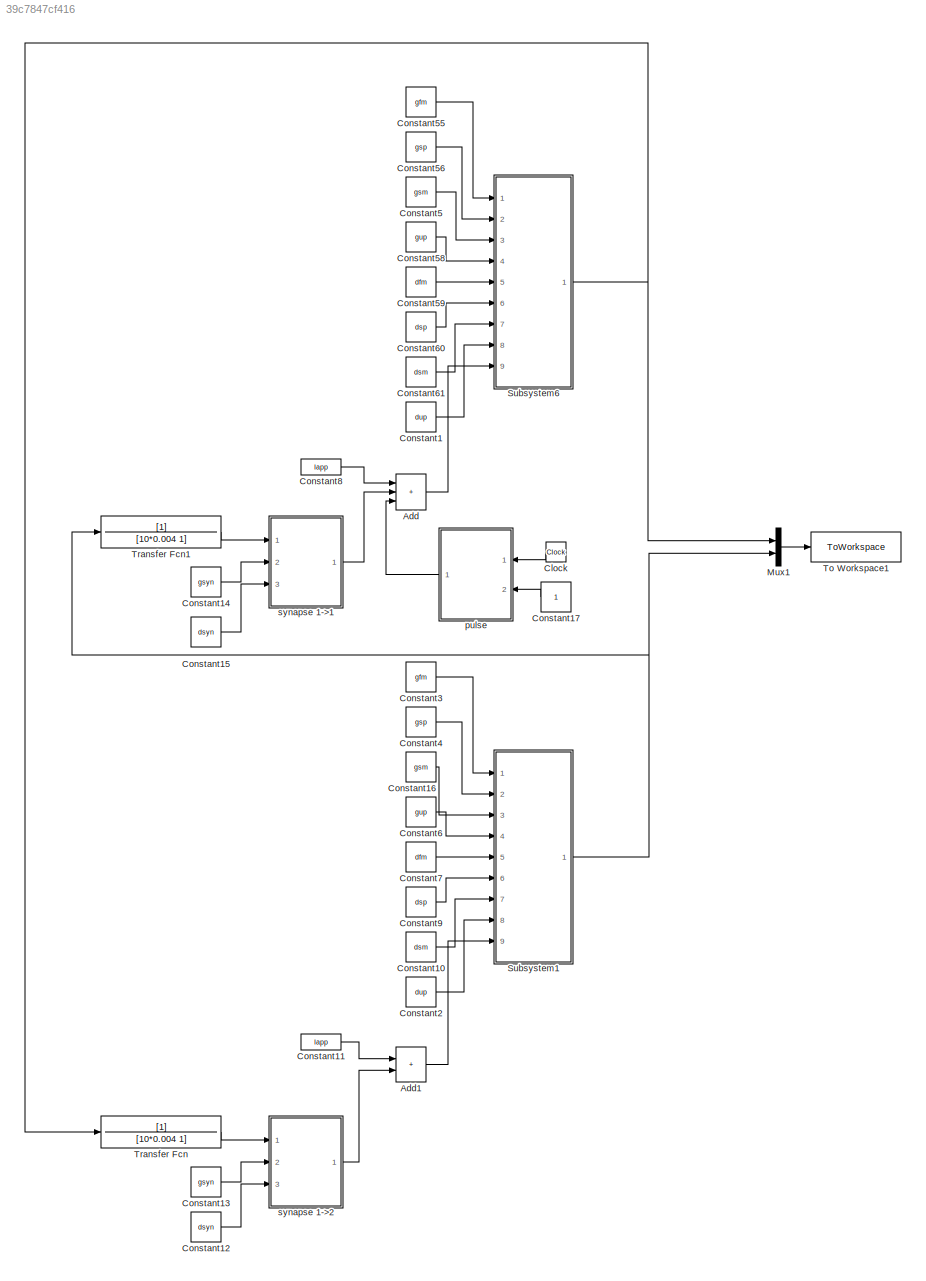
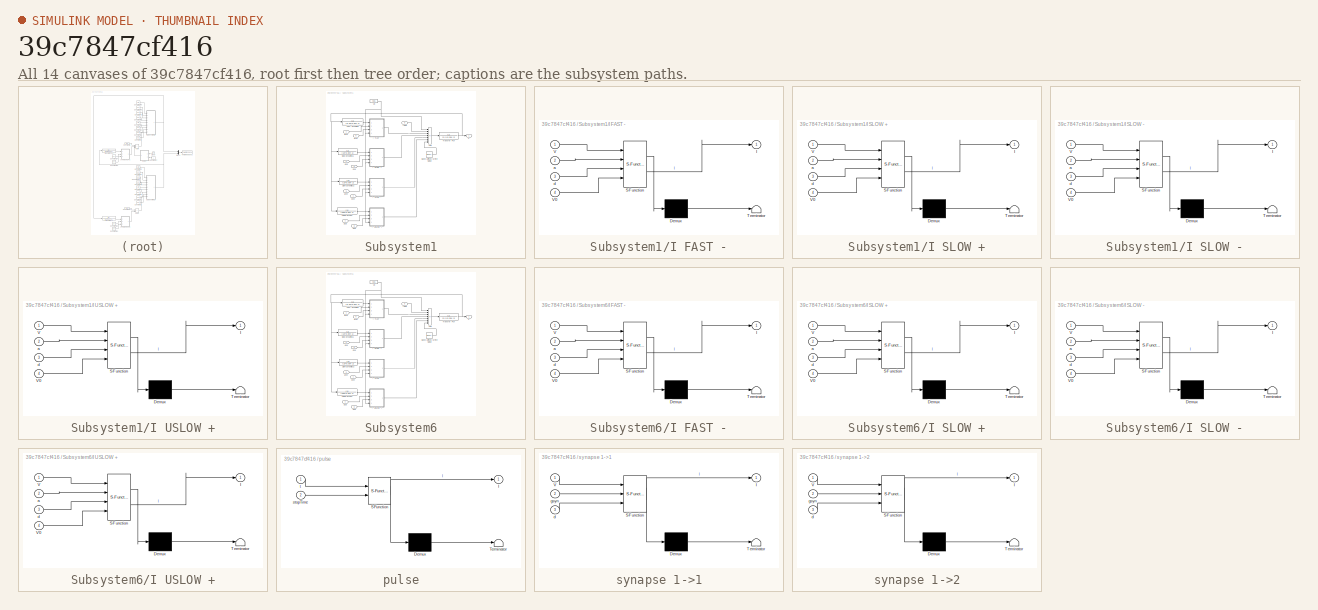
[diagram: thumbnail index - all 14 canvases of the model, root first then tree order]
MODEL slx_39c7847cf416
KIND model
CONFIG AbsTol = auto
CONFIG EnableMultiTasking = off
CONFIG FixedStep = auto
CONFIG MaxStep = auto
CONFIG MinStep = auto
CONFIG RelTol = 1e-3
CONFIG SampleTimeConstraint = Unconstrained
CONFIG SolverName = VariableStepAuto
CONFIG StartTime = 0.0
CONFIG StopTime = 10.0
BLOCK [Sum] Add
  IconShape = rectangular
  Inputs = +++
  Ports = [3, 1]
BLOCK [Sum] Add1
  IconShape = rectangular
  Ports = [2, 1]
BLOCK [Clock] Clock
  NameLocation = top
BLOCK [Constant] Constant1
  Value = dup
BLOCK [Constant] Constant10
  Value = dsm
BLOCK [Constant] Constant11
  Value = Iapp
BLOCK [Constant] Constant12
  Value = dsyn
BLOCK [Constant] Constant13
  Value = gsyn
BLOCK [Constant] Constant14
  Value = gsyn
BLOCK [Constant] Constant15
  Value = dsyn
BLOCK [Constant] Constant16
  Value = gsm
BLOCK [Constant] Constant17
  NameLocation = top
BLOCK [Constant] Constant2
  Value = dup
BLOCK [Constant] Constant3
  Value = gfm
BLOCK [Constant] Constant4
  Value = gsp
BLOCK [Constant] Constant5
  Value = gsm
BLOCK [Constant] Constant55
  Value = gfm
BLOCK [Constant] Constant56
  Value = gsp
BLOCK [Constant] Constant58
  Value = gup
BLOCK [Constant] Constant59
  Value = dfm
BLOCK [Constant] Constant6
  Value = gup
BLOCK [Constant] Constant60
  Value = dsp
BLOCK [Constant] Constant61
  Value = dsm
BLOCK [Constant] Constant7
  Value = dfm
BLOCK [Constant] Constant8
  Value = Iapp
BLOCK [Constant] Constant9
  Value = dsp
BLOCK [Mux] Mux1
  DisplayOption = bar
  Inputs = 2
  Ports = [2, 1]
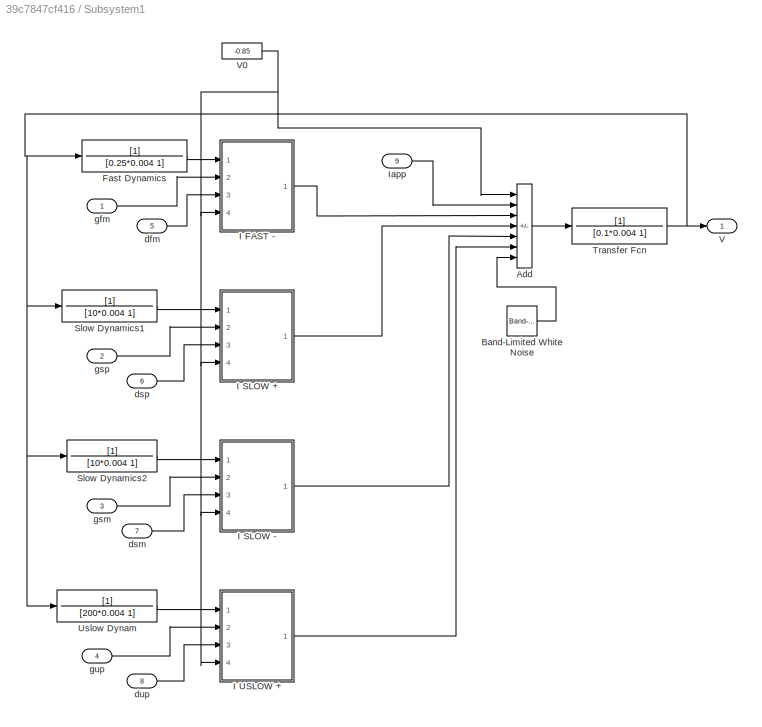
BLOCK [SubSystem] Subsystem1
  Ports = [9, 1]
  RequestExecContextInheritance = off
BLOCK [Sum] Subsystem1/Add
  IconShape = rectangular
  Inputs = ++----+
  Ports = [7, 1]
BLOCK [Reference] Subsystem1/Band-Limited White Noise  REF=simulink/Sources/Band-Limited
White Noise
  Ports = [0, 1]
  SourceBlock = simulink/Sources/Band-Limited\nWhite Noise
  SourceProductBaseCode = SL
  SourceType = Band-Limited White Noise.
BLOCK [TransferFcn] Subsystem1/Fast Dynamics
  Denominator = [0.25*0.004 1]
BLOCK [SubSystem] Subsystem1/I FAST -
  ErrorFcn = Stateflow.Translate.translate
  PermitHierarchicalResolution = ExplicitOnly
  Ports = [4, 1]
  RequestExecContextInheritance = off
  SFBlockType = MATLAB Function
  TreatAsAtomicUnit = on
BLOCK [Demux] Subsystem1/I FAST -/ Demux 
  Outputs = 1
  Ports = [1, 1]
BLOCK [S-Function] Subsystem1/I FAST -/ SFunction 
  EnableBusSupport = on
  FunctionName = sf_sfun
  PortCounts = [4 2]
  Ports = [4, 2]
  SFcnIsStateOwnerBlock = off
  SFunctionDeploymentMode = off
  Tag = Stateflow S-Function 1
BLOCK [Terminator] Subsystem1/I FAST -/ Terminator 
BLOCK [Outport] Subsystem1/I FAST -/I
BLOCK [Inport] Subsystem1/I FAST -/V
BLOCK [Inport] Subsystem1/I FAST -/V0
  Port = 4
BLOCK [Inport] Subsystem1/I FAST -/a
  Port = 2
BLOCK [Inport] Subsystem1/I FAST -/d
  Port = 3
BLOCK [SubSystem] Subsystem1/I SLOW +
  ErrorFcn = Stateflow.Translate.translate
  PermitHierarchicalResolution = ExplicitOnly
  Ports = [4, 1]
  RequestExecContextInheritance = off
  SFBlockType = MATLAB Function
  TreatAsAtomicUnit = on
BLOCK [Demux] Subsystem1/I SLOW +/ Demux 
  Outputs = 1
  Ports = [1, 1]
BLOCK [S-Function] Subsystem1/I SLOW +/ SFunction 
  EnableBusSupport = on
  FunctionName = sf_sfun
  PortCounts = [4 2]
  Ports = [4, 2]
  SFcnIsStateOwnerBlock = off
  SFunctionDeploymentMode = off
  Tag = Stateflow S-Function 2
BLOCK [Terminator] Subsystem1/I SLOW +/ Terminator 
BLOCK [Outport] Subsystem1/I SLOW +/I
BLOCK [Inport] Subsystem1/I SLOW +/V
BLOCK [Inport] Subsystem1/I SLOW +/V0
  Port = 4
BLOCK [Inport] Subsystem1/I SLOW +/a
  Port = 2
BLOCK [Inport] Subsystem1/I SLOW +/d
  Port = 3
BLOCK [SubSystem] Subsystem1/I SLOW -
  ErrorFcn = Stateflow.Translate.translate
  PermitHierarchicalResolution = ExplicitOnly
  Ports = [4, 1]
  RequestExecContextInheritance = off
  SFBlockType = MATLAB Function
  TreatAsAtomicUnit = on
BLOCK [Demux] Subsystem1/I SLOW -/ Demux 
  Outputs = 1
  Ports = [1, 1]
BLOCK [S-Function] Subsystem1/I SLOW -/ SFunction 
  EnableBusSupport = on
  FunctionName = sf_sfun
  PortCounts = [4 2]
  Ports = [4, 2]
  SFcnIsStateOwnerBlock = off
  SFunctionDeploymentMode = off
  Tag = Stateflow S-Function 3
BLOCK [Terminator] Subsystem1/I SLOW -/ Terminator 
BLOCK [Outport] Subsystem1/I SLOW -/I
BLOCK [Inport] Subsystem1/I SLOW -/V
BLOCK [Inport] Subsystem1/I SLOW -/V0
  Port = 4
BLOCK [Inport] Subsystem1/I SLOW -/a
  Port = 2
BLOCK [Inport] Subsystem1/I SLOW -/d
  Port = 3
BLOCK [SubSystem] Subsystem1/I USLOW +
  ErrorFcn = Stateflow.Translate.translate
  PermitHierarchicalResolution = ExplicitOnly
  Ports = [4, 1]
  RequestExecContextInheritance = off
  SFBlockType = MATLAB Function
  TreatAsAtomicUnit = on
BLOCK [Demux] Subsystem1/I USLOW +/ Demux 
  Outputs = 1
  Ports = [1, 1]
BLOCK [S-Function] Subsystem1/I USLOW +/ SFunction 
  EnableBusSupport = on
  FunctionName = sf_sfun
  PortCounts = [4 2]
  Ports = [4, 2]
  SFcnIsStateOwnerBlock = off
  SFunctionDeploymentMode = off
  Tag = Stateflow S-Function 4
BLOCK [Terminator] Subsystem1/I USLOW +/ Terminator 
BLOCK [Outport] Subsystem1/I USLOW +/I
BLOCK [Inport] Subsystem1/I USLOW +/V
BLOCK [Inport] Subsystem1/I USLOW +/V0
  Port = 4
BLOCK [Inport] Subsystem1/I USLOW +/a
  Port = 2
BLOCK [Inport] Subsystem1/I USLOW +/d
  Port = 3
BLOCK [Inport] Subsystem1/Iapp
  Port = 9
BLOCK [TransferFcn] Subsystem1/Slow Dynamics1
  Denominator = [10*0.004 1]
BLOCK [TransferFcn] Subsystem1/Slow Dynamics2
  Denominator = [10*0.004 1]
BLOCK [TransferFcn] Subsystem1/Transfer Fcn
  Denominator = [0.1*0.004 1]
BLOCK [TransferFcn] Subsystem1/Uslow Dynam
  Denominator = [200*0.004 1]
BLOCK [Outport] Subsystem1/V
BLOCK [Constant] Subsystem1/V0
  Value = -0.85
BLOCK [Inport] Subsystem1/dfm
  Port = 5
BLOCK [Inport] Subsystem1/dsm
  Port = 7
BLOCK [Inport] Subsystem1/dsp
  Port = 6
BLOCK [Inport] Subsystem1/dup
  Port = 8
BLOCK [Inport] Subsystem1/gfm
BLOCK [Inport] Subsystem1/gsm
  Port = 3
BLOCK [Inport] Subsystem1/gsp
  Port = 2
BLOCK [Inport] Subsystem1/gup
  Port = 4
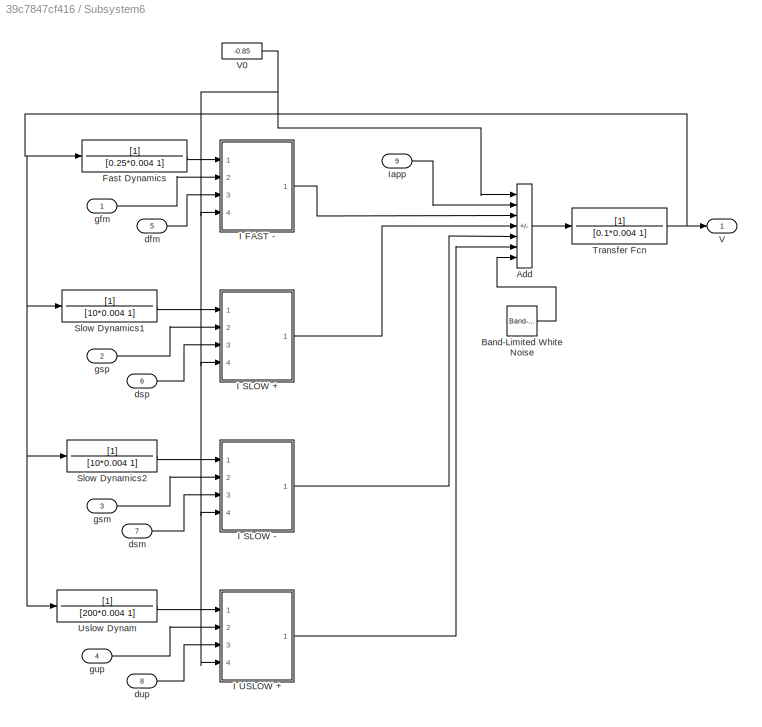
BLOCK [SubSystem] Subsystem6
  Ports = [9, 1]
  RequestExecContextInheritance = off
BLOCK [Sum] Subsystem6/Add
  IconShape = rectangular
  Inputs = ++----+
  Ports = [7, 1]
BLOCK [Reference] Subsystem6/Band-Limited White Noise  REF=simulink/Sources/Band-Limited
White Noise
  Ports = [0, 1]
  SourceBlock = simulink/Sources/Band-Limited\nWhite Noise
  SourceProductBaseCode = SL
  SourceType = Band-Limited White Noise.
BLOCK [TransferFcn] Subsystem6/Fast Dynamics
  Denominator = [0.25*0.004 1]
BLOCK [SubSystem] Subsystem6/I FAST -
  ErrorFcn = Stateflow.Translate.translate
  PermitHierarchicalResolution = ExplicitOnly
  Ports = [4, 1]
  RequestExecContextInheritance = off
  SFBlockType = MATLAB Function
  TreatAsAtomicUnit = on
BLOCK [Demux] Subsystem6/I FAST -/ Demux 
  Outputs = 1
  Ports = [1, 1]
BLOCK [S-Function] Subsystem6/I FAST -/ SFunction 
  EnableBusSupport = on
  FunctionName = sf_sfun
  PortCounts = [4 2]
  Ports = [4, 2]
  SFcnIsStateOwnerBlock = off
  SFunctionDeploymentMode = off
  Tag = Stateflow S-Function 27
BLOCK [Terminator] Subsystem6/I FAST -/ Terminator 
BLOCK [Outport] Subsystem6/I FAST -/I
BLOCK [Inport] Subsystem6/I FAST -/V
BLOCK [Inport] Subsystem6/I FAST -/V0
  Port = 4
BLOCK [Inport] Subsystem6/I FAST -/a
  Port = 2
BLOCK [Inport] Subsystem6/I FAST -/d
  Port = 3
BLOCK [SubSystem] Subsystem6/I SLOW +
  ErrorFcn = Stateflow.Translate.translate
  PermitHierarchicalResolution = ExplicitOnly
  Ports = [4, 1]
  RequestExecContextInheritance = off
  SFBlockType = MATLAB Function
  TreatAsAtomicUnit = on
BLOCK [Demux] Subsystem6/I SLOW +/ Demux 
  Outputs = 1
  Ports = [1, 1]
BLOCK [S-Function] Subsystem6/I SLOW +/ SFunction 
  EnableBusSupport = on
  FunctionName = sf_sfun
  PortCounts = [4 2]
  Ports = [4, 2]
  SFcnIsStateOwnerBlock = off
  SFunctionDeploymentMode = off
  Tag = Stateflow S-Function 28
BLOCK [Terminator] Subsystem6/I SLOW +/ Terminator 
BLOCK [Outport] Subsystem6/I SLOW +/I
BLOCK [Inport] Subsystem6/I SLOW +/V
BLOCK [Inport] Subsystem6/I SLOW +/V0
  Port = 4
BLOCK [Inport] Subsystem6/I SLOW +/a
  Port = 2
BLOCK [Inport] Subsystem6/I SLOW +/d
  Port = 3
BLOCK [SubSystem] Subsystem6/I SLOW -
  ErrorFcn = Stateflow.Translate.translate
  PermitHierarchicalResolution = ExplicitOnly
  Ports = [4, 1]
  RequestExecContextInheritance = off
  SFBlockType = MATLAB Function
  TreatAsAtomicUnit = on
BLOCK [Demux] Subsystem6/I SLOW -/ Demux 
  Outputs = 1
  Ports = [1, 1]
BLOCK [S-Function] Subsystem6/I SLOW -/ SFunction 
  EnableBusSupport = on
  FunctionName = sf_sfun
  PortCounts = [4 2]
  Ports = [4, 2]
  SFcnIsStateOwnerBlock = off
  SFunctionDeploymentMode = off
  Tag = Stateflow S-Function 29
BLOCK [Terminator] Subsystem6/I SLOW -/ Terminator 
BLOCK [Outport] Subsystem6/I SLOW -/I
BLOCK [Inport] Subsystem6/I SLOW -/V
BLOCK [Inport] Subsystem6/I SLOW -/V0
  Port = 4
BLOCK [Inport] Subsystem6/I SLOW -/a
  Port = 2
BLOCK [Inport] Subsystem6/I SLOW -/d
  Port = 3
BLOCK [SubSystem] Subsystem6/I USLOW +
  ErrorFcn = Stateflow.Translate.translate
  PermitHierarchicalResolution = ExplicitOnly
  Ports = [4, 1]
  RequestExecContextInheritance = off
  SFBlockType = MATLAB Function
  TreatAsAtomicUnit = on
BLOCK [Demux] Subsystem6/I USLOW +/ Demux 
  Outputs = 1
  Ports = [1, 1]
BLOCK [S-Function] Subsystem6/I USLOW +/ SFunction 
  EnableBusSupport = on
  FunctionName = sf_sfun
  PortCounts = [4 2]
  Ports = [4, 2]
  SFcnIsStateOwnerBlock = off
  SFunctionDeploymentMode = off
  Tag = Stateflow S-Function 30
BLOCK [Terminator] Subsystem6/I USLOW +/ Terminator 
BLOCK [Outport] Subsystem6/I USLOW +/I
BLOCK [Inport] Subsystem6/I USLOW +/V
BLOCK [Inport] Subsystem6/I USLOW +/V0
  Port = 4
BLOCK [Inport] Subsystem6/I USLOW +/a
  Port = 2
BLOCK [Inport] Subsystem6/I USLOW +/d
  Port = 3
BLOCK [Inport] Subsystem6/Iapp
  Port = 9
BLOCK [TransferFcn] Subsystem6/Slow Dynamics1
  Denominator = [10*0.004 1]
BLOCK [TransferFcn] Subsystem6/Slow Dynamics2
  Denominator = [10*0.004 1]
BLOCK [TransferFcn] Subsystem6/Transfer Fcn
  Denominator = [0.1*0.004 1]
BLOCK [TransferFcn] Subsystem6/Uslow Dynam
  Denominator = [200*0.004 1]
BLOCK [Outport] Subsystem6/V
BLOCK [Constant] Subsystem6/V0
  Value = -0.85
BLOCK [Inport] Subsystem6/dfm
  Port = 5
BLOCK [Inport] Subsystem6/dsm
  Port = 7
BLOCK [Inport] Subsystem6/dsp
  Port = 6
BLOCK [Inport] Subsystem6/dup
  Port = 8
BLOCK [Inport] Subsystem6/gfm
BLOCK [Inport] Subsystem6/gsm
  Port = 3
BLOCK [Inport] Subsystem6/gsp
  Port = 2
BLOCK [Inport] Subsystem6/gup
  Port = 4
BLOCK [ToWorkspace] To Workspace1
  FixptAsFi = on
  MaxDataPoints = inf
  Ports = [1]
  SampleTime = sampleTime
  SaveFormat = Structure With Time
  VariableName = voltage
BLOCK [TransferFcn] Transfer Fcn
  Denominator = [10*0.004 1]
BLOCK [TransferFcn] Transfer Fcn1
  Denominator = [10*0.004 1]
BLOCK [SubSystem] pulse
  ErrorFcn = Stateflow.Translate.translate
  NameLocation = top
  PermitHierarchicalResolution = ExplicitOnly
  Ports = [2, 1]
  RequestExecContextInheritance = off
  SFBlockType = MATLAB Function
  TreatAsAtomicUnit = on
BLOCK [Demux] pulse/ Demux 
  Outputs = 1
  Ports = [1, 1]
BLOCK [S-Function] pulse/ SFunction 
  EnableBusSupport = on
  FunctionName = sf_sfun
  PortCounts = [2 2]
  Ports = [2, 2]
  SFcnIsStateOwnerBlock = off
  SFunctionDeploymentMode = off
  Tag = Stateflow S-Function 6
BLOCK [Terminator] pulse/ Terminator 
BLOCK [Outport] pulse/I
BLOCK [Inport] pulse/stopTime
  Port = 2
BLOCK [Inport] pulse/t
BLOCK [SubSystem] synapse 1->1
  ErrorFcn = Stateflow.Translate.translate
  PermitHierarchicalResolution = ExplicitOnly
  Ports = [3, 1]
  RequestExecContextInheritance = off
  SFBlockType = MATLAB Function
  TreatAsAtomicUnit = on
BLOCK [Demux] synapse 1->1/ Demux 
  Outputs = 1
  Ports = [1, 1]
BLOCK [S-Function] synapse 1->1/ SFunction 
  EnableBusSupport = on
  FunctionName = sf_sfun
  PortCounts = [3 2]
  Ports = [3, 2]
  SFcnIsStateOwnerBlock = off
  SFunctionDeploymentMode = off
  Tag = Stateflow S-Function 5
BLOCK [Terminator] synapse 1->1/ Terminator 
BLOCK [Outport] synapse 1->1/I
BLOCK [Inport] synapse 1->1/V
BLOCK [Inport] synapse 1->1/d
  Port = 3
BLOCK [Inport] synapse 1->1/gsyn
  Port = 2
BLOCK [SubSystem] synapse 1->2
  ErrorFcn = Stateflow.Translate.translate
  PermitHierarchicalResolution = ExplicitOnly
  Ports = [3, 1]
  RequestExecContextInheritance = off
  SFBlockType = MATLAB Function
  TreatAsAtomicUnit = on
BLOCK [Demux] synapse 1->2/ Demux 
  Outputs = 1
  Ports = [1, 1]
BLOCK [S-Function] synapse 1->2/ SFunction 
  EnableBusSupport = on
  FunctionName = sf_sfun
  PortCounts = [3 2]
  Ports = [3, 2]
  SFcnIsStateOwnerBlock = off
  SFunctionDeploymentMode = off
  Tag = Stateflow S-Function 13
BLOCK [Terminator] synapse 1->2/ Terminator 
BLOCK [Outport] synapse 1->2/I
BLOCK [Inport] synapse 1->2/V
BLOCK [Inport] synapse 1->2/d
  Port = 3
BLOCK [Inport] synapse 1->2/gsyn
  Port = 2
LINE Add1:1 -> Subsystem1:9
LINE Add:1 -> Subsystem6:9
LINE Clock:1 -> pulse:1
LINE Constant10:1 -> Subsystem1:7
LINE Constant11:1 -> Add1:1
LINE Constant12:1 -> synapse 1->2:3
LINE Constant13:1 -> synapse 1->2:2
LINE Constant14:1 -> synapse 1->1:2
LINE Constant15:1 -> synapse 1->1:3
LINE Constant16:1 -> Subsystem1:3
LINE Constant17:1 -> pulse:2
LINE Constant1:1 -> Subsystem6:8
LINE Constant2:1 -> Subsystem1:8
LINE Constant3:1 -> Subsystem1:1
LINE Constant4:1 -> Subsystem1:2
LINE Constant55:1 -> Subsystem6:1
LINE Constant56:1 -> Subsystem6:2
LINE Constant58:1 -> Subsystem6:4
LINE Constant59:1 -> Subsystem6:5
LINE Constant5:1 -> Subsystem6:3
LINE Constant60:1 -> Subsystem6:6
LINE Constant61:1 -> Subsystem6:7
LINE Constant6:1 -> Subsystem1:4
LINE Constant7:1 -> Subsystem1:5
LINE Constant8:1 -> Add:1
LINE Constant9:1 -> Subsystem1:6
LINE Mux1:1 -> To Workspace1:1
LINE Subsystem1/Add:1 -> Subsystem1/Transfer Fcn:1
LINE Subsystem1/Band-Limited White Noise:1 -> Subsystem1/Add:7
LINE Subsystem1/Fast Dynamics:1 -> Subsystem1/I FAST -:1
LINE Subsystem1/I FAST -:1 -> Subsystem1/Add:3
LINE Subsystem1/I SLOW +:1 -> Subsystem1/Add:4
LINE Subsystem1/I SLOW -:1 -> Subsystem1/Add:5
LINE Subsystem1/I USLOW +:1 -> Subsystem1/Add:6
LINE Subsystem1/Iapp:1 -> Subsystem1/Add:2
LINE Subsystem1/Slow Dynamics1:1 -> Subsystem1/I SLOW +:1
LINE Subsystem1/Slow Dynamics2:1 -> Subsystem1/I SLOW -:1
NET Subsystem1/Transfer Fcn:1 -> Subsystem1/Fast Dynamics:1, Subsystem1/Slow Dynamics1:1, Subsystem1/Slow Dynamics2:1, Subsystem1/Uslow Dynam:1, Subsystem1/V:1
LINE Subsystem1/Uslow Dynam:1 -> Subsystem1/I USLOW +:1
NET Subsystem1/V0:1 -> Subsystem1/Add:1, Subsystem1/I FAST -:4, Subsystem1/I SLOW +:4, Subsystem1/I SLOW -:4, Subsystem1/I USLOW +:4
LINE Subsystem1/dfm:1 -> Subsystem1/I FAST -:3
LINE Subsystem1/dsm:1 -> Subsystem1/I SLOW -:3
LINE Subsystem1/dsp:1 -> Subsystem1/I SLOW +:3
LINE Subsystem1/dup:1 -> Subsystem1/I USLOW +:3
LINE Subsystem1/gfm:1 -> Subsystem1/I FAST -:2
LINE Subsystem1/gsm:1 -> Subsystem1/I SLOW -:2
LINE Subsystem1/gsp:1 -> Subsystem1/I SLOW +:2
LINE Subsystem1/gup:1 -> Subsystem1/I USLOW +:2
NET Subsystem1:1 -> Mux1:2, Transfer Fcn1:1
LINE Subsystem6/Add:1 -> Subsystem6/Transfer Fcn:1
LINE Subsystem6/Band-Limited White Noise:1 -> Subsystem6/Add:7
LINE Subsystem6/Fast Dynamics:1 -> Subsystem6/I FAST -:1
LINE Subsystem6/I FAST -:1 -> Subsystem6/Add:3
LINE Subsystem6/I SLOW +:1 -> Subsystem6/Add:4
LINE Subsystem6/I SLOW -:1 -> Subsystem6/Add:5
LINE Subsystem6/I USLOW +:1 -> Subsystem6/Add:6
LINE Subsystem6/Iapp:1 -> Subsystem6/Add:2
LINE Subsystem6/Slow Dynamics1:1 -> Subsystem6/I SLOW +:1
LINE Subsystem6/Slow Dynamics2:1 -> Subsystem6/I SLOW -:1
NET Subsystem6/Transfer Fcn:1 -> Subsystem6/Fast Dynamics:1, Subsystem6/Slow Dynamics1:1, Subsystem6/Slow Dynamics2:1, Subsystem6/Uslow Dynam:1, Subsystem6/V:1
LINE Subsystem6/Uslow Dynam:1 -> Subsystem6/I USLOW +:1
NET Subsystem6/V0:1 -> Subsystem6/Add:1, Subsystem6/I FAST -:4, Subsystem6/I SLOW +:4, Subsystem6/I SLOW -:4, Subsystem6/I USLOW +:4
LINE Subsystem6/dfm:1 -> Subsystem6/I FAST -:3
LINE Subsystem6/dsm:1 -> Subsystem6/I SLOW -:3
LINE Subsystem6/dsp:1 -> Subsystem6/I SLOW +:3
LINE Subsystem6/dup:1 -> Subsystem6/I USLOW +:3
LINE Subsystem6/gfm:1 -> Subsystem6/I FAST -:2
LINE Subsystem6/gsm:1 -> Subsystem6/I SLOW -:2
LINE Subsystem6/gsp:1 -> Subsystem6/I SLOW +:2
LINE Subsystem6/gup:1 -> Subsystem6/I USLOW +:2
NET Subsystem6:1 -> Mux1:1, Transfer Fcn:1
LINE Transfer Fcn1:1 -> synapse 1->1:1
LINE Transfer Fcn:1 -> synapse 1->2:1
LINE pulse:1 -> Add:3
LINE synapse 1->1:1 -> Add:2
LINE synapse 1->2:1 -> Add1:2
note: NET lines group one-source signal fan-out (src -> all destinations, sorted); 1:1 wires keep LINE
CHART Subsystem1/I FAST - states=1 transitions=1
  STATE_LABEL 'eML_blk_kernel()'
  STATE_LABEL 'SCRIPT:\nfunction I = fcn(V,a,d,V0)\n\nI = a*(tanh(V-d)-tanh(V0-d));\n'
CHART Subsystem6/I USLOW + states=1 transitions=1
  STATE_LABEL 'eML_blk_kernel()'
  STATE_LABEL 'SCRIPT:\nfunction I = fcn(V,a,d,V0)\n\nI = a*(tanh(V-d)-tanh(V0-d));\n'
CHART Subsystem1/I SLOW + states=1 transitions=1
  STATE_LABEL 'eML_blk_kernel()'
  STATE_LABEL 'SCRIPT:\nfunction I = fcn(V,a,d,V0)\n\nI = a*(tanh(V-d)-tanh(V0-d));\n'
CHART Subsystem1/I SLOW - states=1 transitions=1
  STATE_LABEL 'eML_blk_kernel()'
  STATE_LABEL 'SCRIPT:\nfunction I = fcn(V,a,d,V0)\n\nI = a*(tanh(V-d)-tanh(V0-d));\n'
CHART Subsystem1/I USLOW + states=1 transitions=1
  STATE_LABEL 'eML_blk_kernel()'
  STATE_LABEL 'SCRIPT:\nfunction I = fcn(V,a,d,V0)\n\nI = a*(tanh(V-d)-tanh(V0-d));\n'
CHART synapse 1->1 states=1 transitions=1
  STATE_LABEL 'eML_blk_kernel()'
  STATE_LABEL 'SCRIPT:\nfunction I = fcn(V,gsyn,d)\n\nI = gsyn*(tanh(2*(V-d))+1)/2;\n'
CHART pulse states=1 transitions=1
  STATE_LABEL 'eML_blk_kernel()'
  STATE_LABEL 'SCRIPT:\nfunction I = fcn(t, stopTime)\n\nif t < stopTime\n    I = 3;\nelse\n    I = 0;\nend\n'
CHART synapse 1->2 states=1 transitions=1
  STATE_LABEL 'eML_blk_kernel()'
  STATE_LABEL 'SCRIPT:\nfunction I = fcn(V,gsyn,d)\n\nI = gsyn*(tanh(2*(V-d))+1)/2;\n'
CHART Subsystem6/I FAST - states=1 transitions=1
  STATE_LABEL 'eML_blk_kernel()'
  STATE_LABEL 'SCRIPT:\nfunction I = fcn(V,a,d,V0)\n\nI = a*(tanh(V-d)-tanh(V0-d));\n'
CHART Subsystem6/I SLOW + states=1 transitions=1
  STATE_LABEL 'eML_blk_kernel()'
  STATE_LABEL 'SCRIPT:\nfunction I = fcn(V,a,d,V0)\n\nI = a*(tanh(V-d)-tanh(V0-d));\n'
CHART Subsystem6/I SLOW - states=1 transitions=1
  STATE_LABEL 'eML_blk_kernel()'
  STATE_LABEL 'SCRIPT:\nfunction I = fcn(V,a,d,V0)\n\nI = a*(tanh(V-d)-tanh(V0-d));\n'
CHART  states=0 transitions=0
CHART  states=0 transitions=0
CHART  states=0 transitions=0
CHART  states=0 transitions=0
CHART  states=0 transitions=0
CHART  states=0 transitions=0
CHART  states=0 transitions=0
CHART  states=0 transitions=0
CHART  states=0 transitions=0
CHART  states=0 transitions=0
CHART  states=0 transitions=0
